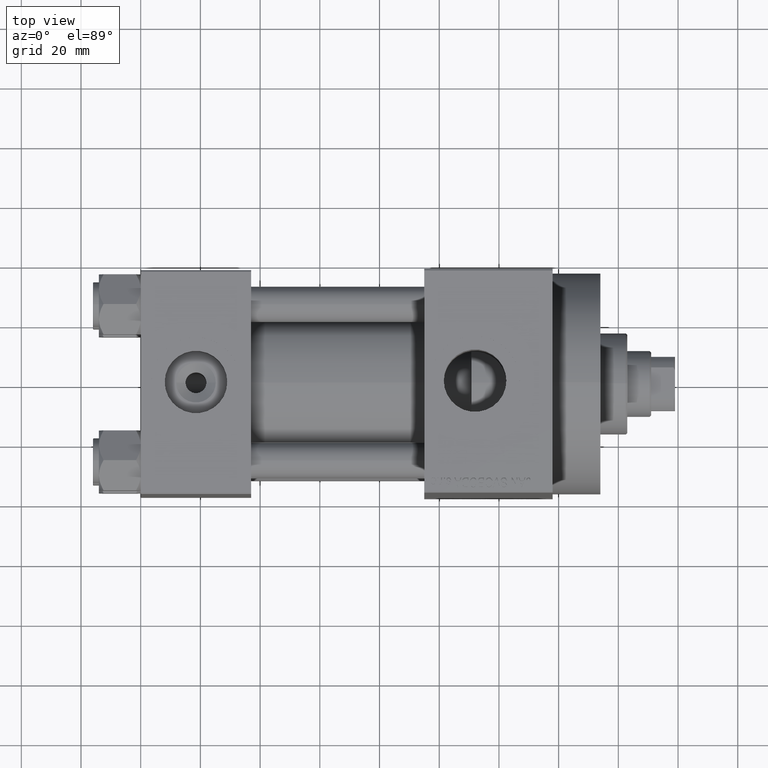
[diagram: clean part render]
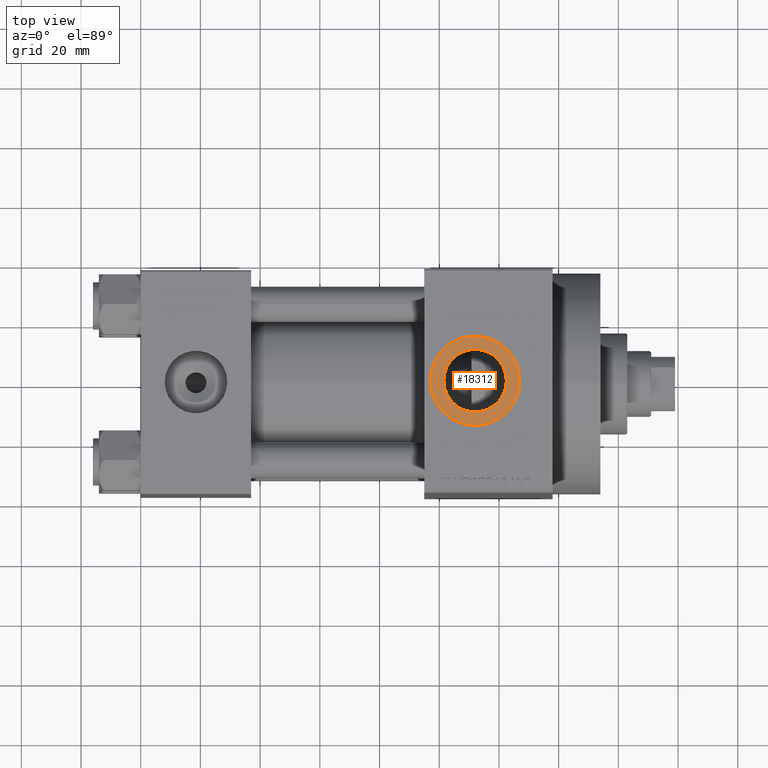
[diagram: same view with one face highlighted and labeled with its STEP entity id]
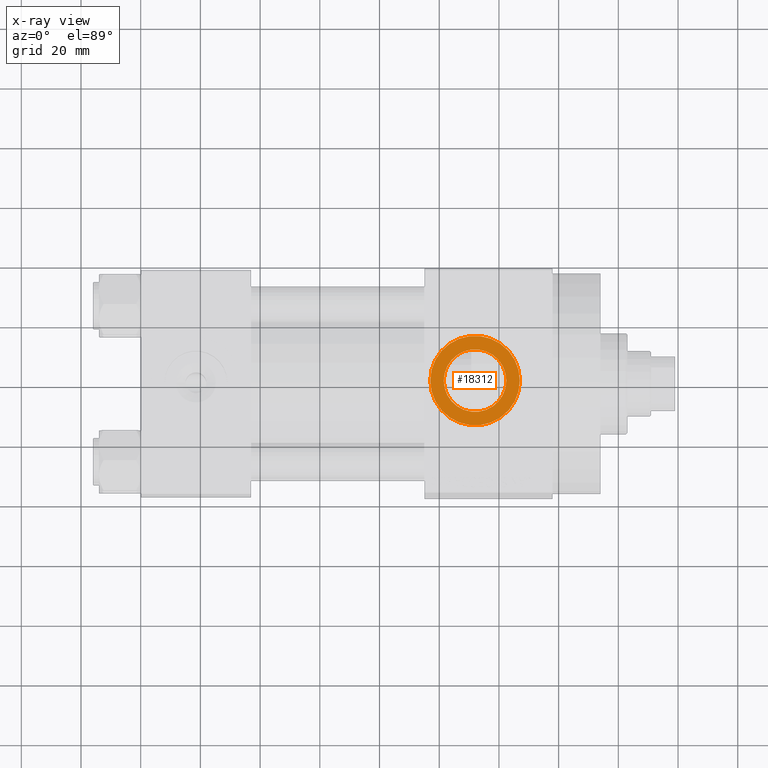
[diagram: x-ray of the same camera — body ghosted, the highlighted face saturated]
A machine part, top view. The second image highlights one B-rep face of the part: STEP entity #18312.
The next image is the same camera in x-ray: the body ghosted, the highlighted face saturated — about 0% of this face is hidden behind the body in this view.
In plain terms, the highlighted planar face has unit normal (0, 0, 1).
Its self-contained STEP definition (entity closure, byte-faithful):
#1305 = CARTESIAN_POINT ( 'NONE',  ( 112.0000000000000000, -1.184237892933500047E-14, 63.79999999999996874 ) ) ;
#2357 = CARTESIAN_POINT ( 'NONE',  ( 112.0000000000000000, -1.184237892933500047E-14, 63.79999999999996874 ) ) ;
#2659 = FACE_OUTER_BOUND ( 'NONE', #37634, .T. ) ;
#3377 = ORIENTED_EDGE ( 'NONE', *, *, #46108, .T. ) ;
#6149 = AXIS2_PLACEMENT_3D ( 'NONE', #1305, #41391, #8676 ) ;
#6705 = PLANE ( 'NONE',  #24774 ) ;
#6863 = EDGE_CURVE ( 'NONE', #39429, #46647, #32821, .T. ) ;
#8676 = DIRECTION ( 'NONE',  ( 1.000000000000000000, 0.000000000000000000, 0.000000000000000000 ) ) ;
#10131 = CARTESIAN_POINT ( 'NONE',  ( 112.0000000000000000, -1.184237892933500047E-14, 63.79999999999996874 ) ) ;
#10298 = DIRECTION ( 'NONE',  ( 0.000000000000000000, 0.000000000000000000, 1.000000000000000000 ) ) ;
#10838 = DIRECTION ( 'NONE',  ( -0.000000000000000000, -0.000000000000000000, -1.000000000000000000 ) ) ;
#14118 = FACE_BOUND ( 'NONE', #25289, .T. ) ;
#15003 = DIRECTION ( 'NONE',  ( 0.000000000000000000, 0.000000000000000000, 1.000000000000000000 ) ) ;
#15173 = CIRCLE ( 'NONE', #38021, 15.00000000000000000 ) ;
#15979 = VERTEX_POINT ( 'NONE', #32152 ) ;
#16126 = CARTESIAN_POINT ( 'NONE',  ( 101.5199999999999960, -1.184237892933500047E-14, 63.79999999999996874 ) ) ;
#17225 = AXIS2_PLACEMENT_3D ( 'NONE', #10131, #10838, #24689 ) ;
#18312 = ADVANCED_FACE ( 'NONE', ( #14118, #2659 ), #6705, .T. ) ;
#18857 = CARTESIAN_POINT ( 'NONE',  ( 122.4800000000000040, -1.055894908382857498E-14, 63.79999999999996874 ) ) ;
#19800 = DIRECTION ( 'NONE',  ( 0.000000000000000000, 0.000000000000000000, 1.000000000000000000 ) ) ;
#19973 = VERTEX_POINT ( 'NONE', #21410 ) ;
#21410 = CARTESIAN_POINT ( 'NONE',  ( 96.99999999999998579, -1.000540873061397009E-14, 63.79999999999996874 ) ) ;
#24338 = EDGE_CURVE ( 'NONE', #19973, #15979, #45485, .T. ) ;
#24658 = ORIENTED_EDGE ( 'NONE', *, *, #31009, .T. ) ;
#24689 = DIRECTION ( 'NONE',  ( 1.000000000000000000, 0.000000000000000000, 0.000000000000000000 ) ) ;
#24774 = AXIS2_PLACEMENT_3D ( 'NONE', #32719, #10298, #43713 ) ;
#25255 = DIRECTION ( 'NONE',  ( 1.000000000000000000, 0.000000000000000000, 0.000000000000000000 ) ) ;
#25289 = EDGE_LOOP ( 'NONE', ( #24658, #32033 ) ) ;
#27892 = CIRCLE ( 'NONE', #17225, 10.48000000000000398 ) ;
#29078 = CARTESIAN_POINT ( 'NONE',  ( 112.0000000000000000, -1.184237892933500047E-14, 63.79999999999996874 ) ) ;
#31009 = EDGE_CURVE ( 'NONE', #46647, #39429, #27892, .T. ) ;
#32033 = ORIENTED_EDGE ( 'NONE', *, *, #6863, .T. ) ;
#32152 = CARTESIAN_POINT ( 'NONE',  ( 127.0000000000000000, -1.184237892933500047E-14, 63.79999999999996874 ) ) ;
#32719 = CARTESIAN_POINT ( 'NONE',  ( 112.0000000000000000, -1.184237892933500047E-14, 63.79999999999996874 ) ) ;
#32821 = CIRCLE ( 'NONE', #6149, 10.48000000000000398 ) ;
#34812 = AXIS2_PLACEMENT_3D ( 'NONE', #2357, #19800, #45344 ) ;
#37634 = EDGE_LOOP ( 'NONE', ( #3377, #46056 ) ) ;
#38021 = AXIS2_PLACEMENT_3D ( 'NONE', #29078, #15003, #25255 ) ;
#39429 = VERTEX_POINT ( 'NONE', #18857 ) ;
#41391 = DIRECTION ( 'NONE',  ( -0.000000000000000000, -0.000000000000000000, -1.000000000000000000 ) ) ;
#43713 = DIRECTION ( 'NONE',  ( 1.000000000000000000, 0.000000000000000000, -0.000000000000000000 ) ) ;
#45344 = DIRECTION ( 'NONE',  ( 1.000000000000000000, 0.000000000000000000, 0.000000000000000000 ) ) ;
#45485 = CIRCLE ( 'NONE', #34812, 15.00000000000000000 ) ;
#46056 = ORIENTED_EDGE ( 'NONE', *, *, #24338, .T. ) ;
#46108 = EDGE_CURVE ( 'NONE', #15979, #19973, #15173, .T. ) ;
#46647 = VERTEX_POINT ( 'NONE', #16126 ) ;